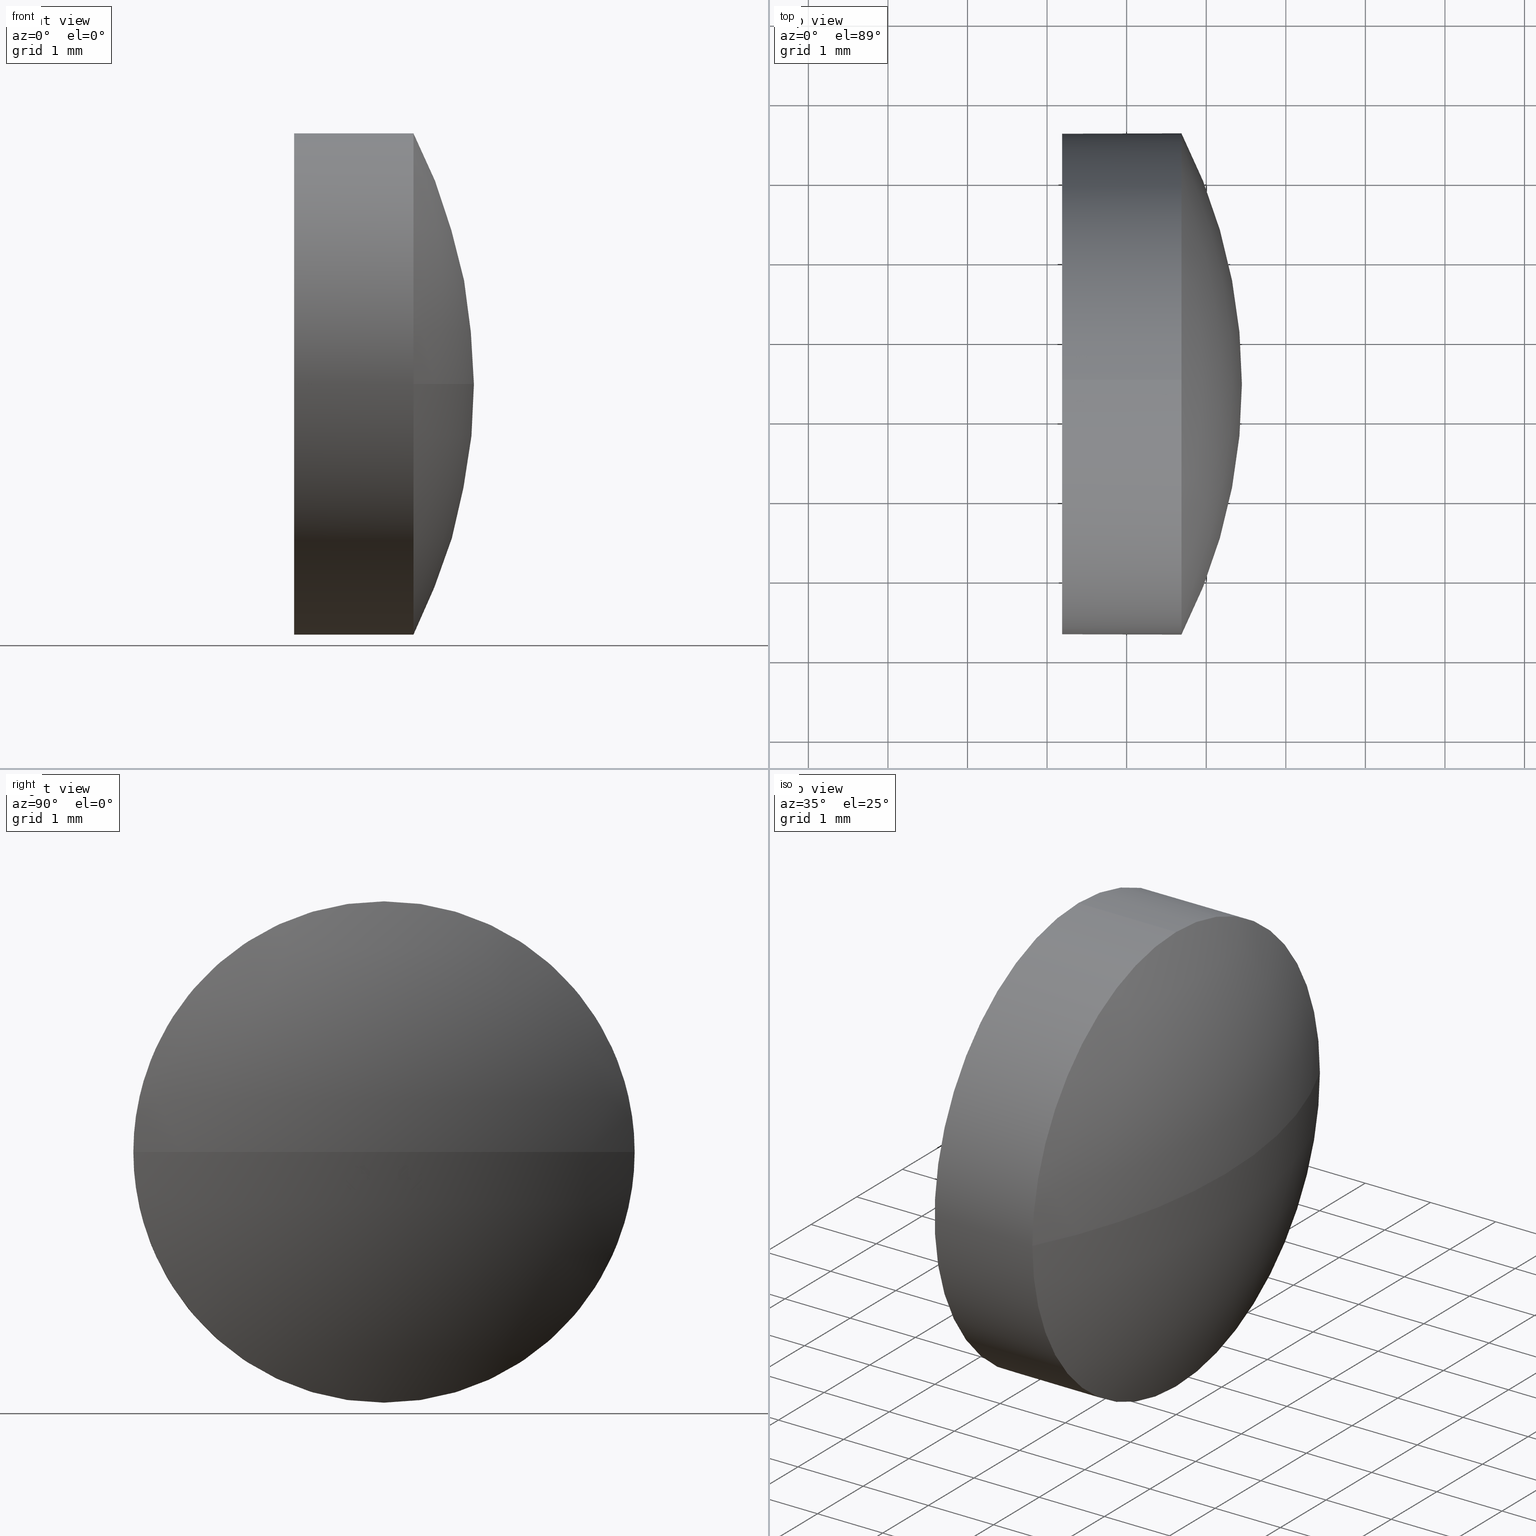
[diagram: canonical four-view strip — front | top / right | iso, engineering-drawing reading convention]
A machine part, canonical four-view strip (front | top / right | iso — engineering-drawing reading convention). The complete STEP part file that produces these views, byte-faithful:
ISO-10303-21;
HEADER;
FILE_DESCRIPTION (( 'STEP AP214' ),
    '1' );
FILE_NAME ('100351.STEP',
    '2019-06-03T03:25:53',
    ( '' ),
    ( '' ),
    'SwSTEP 2.0',
    'SolidWorks 2016',
    '' );
FILE_SCHEMA (( 'AUTOMOTIVE_DESIGN' ));
ENDSEC;

DATA;
#1 = ADVANCED_BREP_SHAPE_REPRESENTATION ( '100351', ( #84, #34 ), #147 ) ;
#2 = ORIENTED_EDGE ( 'NONE', *, *, #122, .F. ) ;
#3 = PRESENTATION_STYLE_ASSIGNMENT (( #126 ) ) ;
#4 = LINE ( 'NONE', #102, #105 ) ;
#5 = ORIENTED_EDGE ( 'NONE', *, *, #86, .F. ) ;
#6 = MECHANICAL_DESIGN_GEOMETRIC_PRESENTATION_REPRESENTATION (  '', ( #73 ), #87 ) ;
#7 = DIRECTION ( 'NONE',  ( 0.0000000000000000000, -1.000000000000000000, 0.0000000000000000000 ) ) ;
#8 = FACE_OUTER_BOUND ( 'NONE', #74, .T. ) ;
#9 = FACE_OUTER_BOUND ( 'NONE', #107, .T. ) ;
#10 = DIRECTION ( 'NONE',  ( 1.000000000000000000, 0.0000000000000000000, 0.0000000000000000000 ) ) ;
#11 = ORIENTED_EDGE ( 'NONE', *, *, #101, .T. ) ;
#12 =( NAMED_UNIT ( * ) SI_UNIT ( $, .STERADIAN. ) SOLID_ANGLE_UNIT ( ) );
#13 = CARTESIAN_POINT ( 'NONE',  ( 402.6884556923478700, 12.44565855584187600, 0.0000000000000000000 ) ) ;
#14 = PRODUCT_DEFINITION_FORMATION_WITH_SPECIFIED_SOURCE ( '�κ�', '', #186, .NOT_KNOWN. ) ;
#15 = DIRECTION ( 'NONE',  ( 0.0000000000000000000, -1.000000000000000000, -1.224646799147353200E-016 ) ) ;
#16 = CARTESIAN_POINT ( 'NONE',  ( 0.0000000000000000000, 0.0000000000000000000, 0.0000000000000000000 ) ) ;
#17 = AXIS2_PLACEMENT_3D ( 'NONE', #38, #50, #151 ) ;
#18 = PRODUCT_DEFINITION_CONTEXT ( 'detailed design', #28, 'design' ) ;
#19 = SHAPE_DEFINITION_REPRESENTATION ( #146, #1 ) ;
#20 = CIRCLE ( 'NONE', #113, 3.149999999999999900 ) ;
#21 = ORIENTED_EDGE ( 'NONE', *, *, #122, .T. ) ;
#22 = DIRECTION ( 'NONE',  ( -1.000000000000000000, -0.0000000000000000000, -0.0000000000000000000 ) ) ;
#23 = CIRCLE ( 'NONE', #125, 3.149999999999999900 ) ;
#24 = CARTESIAN_POINT ( 'NONE',  ( 401.1884556923478700, 12.44565855584187600, 0.0000000000000000000 ) ) ;
#25 = EDGE_CURVE ( 'NONE', #117, #123, #47, .T. ) ;
#26 = CARTESIAN_POINT ( 'NONE',  ( 402.6884556923478700, 15.59565855584187400, 3.857637417314135600E-016 ) ) ;
#27 = APPLICATION_PROTOCOL_DEFINITION ( 'draft international standard', 'automotive_design', 1998, #104 ) ;
#28 = APPLICATION_CONTEXT ( 'automotive_design' ) ;
#29 = VERTEX_POINT ( 'NONE', #26 ) ;
#30 = STYLED_ITEM ( 'NONE', ( #40 ), #84 ) ;
#31 = PLANE ( 'NONE',  #175 ) ;
#32 = DIRECTION ( 'NONE',  ( 0.0000000000000000000, 0.0000000000000000000, 1.000000000000000000 ) ) ;
#33 = EDGE_LOOP ( 'NONE', ( #41, #11, #21, #37, #138 ) ) ;
#34 = AXIS2_PLACEMENT_3D ( 'NONE', #16, #32, #106 ) ;
#35 = ADVANCED_FACE ( 'NONE', ( #8 ), #114, .T. ) ;
#36 = COLOUR_RGB ( '',1.000000000000000000, 1.000000000000000000, 1.000000000000000000 ) ;
#37 = ORIENTED_EDGE ( 'NONE', *, *, #25, .T. ) ;
#38 = CARTESIAN_POINT ( 'NONE',  ( 396.5404951660320300, 12.44565855584189700, 0.0000000000000000000 ) ) ;
#39 = DIRECTION ( 'NONE',  ( -1.000000000000000000, -0.0000000000000000000, -0.0000000000000000000 ) ) ;
#40 = PRESENTATION_STYLE_ASSIGNMENT (( #166 ) ) ;
#41 = ORIENTED_EDGE ( 'NONE', *, *, #90, .F. ) ;
#42 = CARTESIAN_POINT ( 'NONE',  ( 401.1884556923478700, 12.44565855584187600, 3.149999999999999900 ) ) ;
#43 = DIRECTION ( 'NONE',  ( -1.000000000000000000, -0.0000000000000000000, -0.0000000000000000000 ) ) ;
#44 = SURFACE_STYLE_FILL_AREA ( #66 ) ;
#45 = CLOSED_SHELL ( 'NONE', ( #35, #100, #46, #48, #176 ) ) ;
#46 = ADVANCED_FACE ( 'NONE', ( #103 ), #82, .T. ) ;
#47 = LINE ( 'NONE', #121, #93 ) ;
#48 = ADVANCED_FACE ( 'NONE', ( #71 ), #148, .T. ) ;
#49 = ORIENTED_EDGE ( 'NONE', *, *, #145, .F. ) ;
#50 = DIRECTION ( 'NONE',  ( 0.0000000000000000000, 0.0000000000000000000, 1.000000000000000000 ) ) ;
#51 = DIRECTION ( 'NONE',  ( -1.000000000000000000, -0.0000000000000000000, -0.0000000000000000000 ) ) ;
#52 = FILL_AREA_STYLE_COLOUR ( '', #36 ) ;
#53 = DIRECTION ( 'NONE',  ( -1.000000000000000000, -0.0000000000000000000, -0.0000000000000000000 ) ) ;
#54 = VERTEX_POINT ( 'NONE', #118 ) ;
#55 = FILL_AREA_STYLE_COLOUR ( '', #85 ) ;
#56 = DIRECTION ( 'NONE',  ( 0.0000000000000000000, 0.0000000000000000000, 1.000000000000000000 ) ) ;
#57 = DIRECTION ( 'NONE',  ( 0.0000000000000000000, 0.0000000000000000000, 1.000000000000000000 ) ) ;
#58 = AXIS2_PLACEMENT_3D ( 'NONE', #24, #53, #75 ) ;
#59 = CARTESIAN_POINT ( 'NONE',  ( 402.6884556923478700, 12.44565855584187600, 0.0000000000000000000 ) ) ;
#60 = DIRECTION ( 'NONE',  ( -1.000000000000000000, 0.0000000000000000000, 0.0000000000000000000 ) ) ;
#61 = CIRCLE ( 'NONE', #152, 6.907960526315816800 ) ;
#62 = ORIENTED_EDGE ( 'NONE', *, *, #145, .T. ) ;
#63 = CARTESIAN_POINT ( 'NONE',  ( 402.6884556923478700, 12.44565855584187600, 0.0000000000000000000 ) ) ;
#64 = AXIS2_PLACEMENT_3D ( 'NONE', #119, #22, #154 ) ;
#65 = DIRECTION ( 'NONE',  ( -1.000000000000000000, -0.0000000000000000000, -0.0000000000000000000 ) ) ;
#66 = FILL_AREA_STYLE ('',( #55 ) ) ;
#67 = DIRECTION ( 'NONE',  ( 0.0000000000000000000, 0.0000000000000000000, -1.000000000000000000 ) ) ;
#68 = VERTEX_POINT ( 'NONE', #135 ) ;
#69 = APPLICATION_PROTOCOL_DEFINITION ( 'draft international standard', 'automotive_design', 1998, #28 ) ;
#70 =( LENGTH_UNIT ( ) NAMED_UNIT ( * ) SI_UNIT ( .MILLI., .METRE. ) );
#71 = FACE_OUTER_BOUND ( 'NONE', #33, .T. ) ;
#72 = ORIENTED_EDGE ( 'NONE', *, *, #90, .T. ) ;
#73 = STYLED_ITEM ( 'NONE', ( #3 ), #1 ) ;
#74 = EDGE_LOOP ( 'NONE', ( #83, #72, #5, #112, #62 ) ) ;
#75 = DIRECTION ( 'NONE',  ( 0.0000000000000000000, 0.0000000000000000000, 1.000000000000000000 ) ) ;
#76 = DIRECTION ( 'NONE',  ( 0.0000000000000000000, 0.0000000000000000000, 1.000000000000000000 ) ) ;
#77 = CARTESIAN_POINT ( 'NONE',  ( 400.3278176035988700, 12.44565855584187600, 0.0000000000000000000 ) ) ;
#78 = ORIENTED_EDGE ( 'NONE', *, *, #173, .T. ) ;
#79 = CARTESIAN_POINT ( 'NONE',  ( 402.6884556923478700, 12.44565855584187600, 3.149999999999999900 ) ) ;
#80 =( NAMED_UNIT ( * ) PLANE_ANGLE_UNIT ( ) SI_UNIT ( $, .RADIAN. ) );
#81 = DIRECTION ( 'NONE',  ( 0.0000000000000000000, 0.0000000000000000000, -1.000000000000000000 ) ) ;
#82 = SPHERICAL_SURFACE ( 'NONE', #131, 6.907960526315816800 ) ;
#83 = ORIENTED_EDGE ( 'NONE', *, *, #133, .T. ) ;
#84 = MANIFOLD_SOLID_BREP ( '��ת1', #45 ) ;
#85 = COLOUR_RGB ( '',1.000000000000000000, 1.000000000000000000, 1.000000000000000000 ) ;
#86 = EDGE_CURVE ( 'NONE', #123, #167, #155, .T. ) ;
#87 =( GEOMETRIC_REPRESENTATION_CONTEXT ( 3 ) GLOBAL_UNCERTAINTY_ASSIGNED_CONTEXT ( ( #132 ) ) GLOBAL_UNIT_ASSIGNED_CONTEXT ( ( #70, #110, #185 ) ) REPRESENTATION_CONTEXT ( 'NONE', 'WORKASPACE' ) );
#88 = AXIS2_PLACEMENT_3D ( 'NONE', #59, #169, #56 ) ;
#89 = CIRCLE ( 'NONE', #171, 3.149999999999999900 ) ;
#90 = EDGE_CURVE ( 'NONE', #177, #167, #4, .T. ) ;
#91 =( LENGTH_UNIT ( ) NAMED_UNIT ( * ) SI_UNIT ( .MILLI., .METRE. ) );
#92 = SURFACE_SIDE_STYLE ('',( #174 ) ) ;
#93 = VECTOR ( 'NONE', #165, 1000.000000000000000 ) ;
#94 = AXIS2_PLACEMENT_3D ( 'NONE', #160, #67, #60 ) ;
#95 = CARTESIAN_POINT ( 'NONE',  ( 396.5404951660320300, 12.44565855584189700, 0.0000000000000000000 ) ) ;
#96 = PRODUCT_DEFINITION ( 'δ֪', '', #14, #18 ) ;
#97 = ORIENTED_EDGE ( 'NONE', *, *, #116, .F. ) ;
#98 = ORIENTED_EDGE ( 'NONE', *, *, #111, .F. ) ;
#99 = AXIS2_PLACEMENT_3D ( 'NONE', #63, #65, #76 ) ;
#100 = ADVANCED_FACE ( 'NONE', ( #9 ), #115, .T. ) ;
#101 = EDGE_CURVE ( 'NONE', #177, #54, #149, .T. ) ;
#102 = CARTESIAN_POINT ( 'NONE',  ( 400.3278176035988700, 12.44565855584187600, -3.149999999999999900 ) ) ;
#103 = FACE_OUTER_BOUND ( 'NONE', #156, .T. ) ;
#104 = APPLICATION_CONTEXT ( 'automotive_design' ) ;
#105 = VECTOR ( 'NONE', #51, 1000.000000000000000 ) ;
#106 = DIRECTION ( 'NONE',  ( 1.000000000000000000, 0.0000000000000000000, 0.0000000000000000000 ) ) ;
#107 = EDGE_LOOP ( 'NONE', ( #97, #130, #49, #2 ) ) ;
#108 = DIRECTION ( 'NONE',  ( -1.000000000000000000, -0.0000000000000000000, -0.0000000000000000000 ) ) ;
#109 = DIRECTION ( 'NONE',  ( -1.000000000000000000, -0.0000000000000000000, -0.0000000000000000000 ) ) ;
#110 =( NAMED_UNIT ( * ) PLANE_ANGLE_UNIT ( ) SI_UNIT ( $, .RADIAN. ) );
#111 = EDGE_CURVE ( 'NONE', #68, #29, #61, .T. ) ;
#112 = ORIENTED_EDGE ( 'NONE', *, *, #25, .F. ) ;
#113 = AXIS2_PLACEMENT_3D ( 'NONE', #13, #109, #168 ) ;
#114 = CYLINDRICAL_SURFACE ( 'NONE', #64, 3.149999999999999900 ) ;
#115 = SPHERICAL_SURFACE ( 'NONE', #17, 6.907960526315816800 ) ;
#116 = EDGE_CURVE ( 'NONE', #68, #54, #129, .T. ) ;
#117 = VERTEX_POINT ( 'NONE', #79 ) ;
#118 = CARTESIAN_POINT ( 'NONE',  ( 402.6884556923478700, 9.295658555841898300, 0.0000000000000000000 ) ) ;
#119 = CARTESIAN_POINT ( 'NONE',  ( 400.3278176035988700, 12.44565855584187600, 0.0000000000000000000 ) ) ;
#120 = PRESENTATION_LAYER_ASSIGNMENT (  '', '', ( #30 ) ) ;
#121 = CARTESIAN_POINT ( 'NONE',  ( 400.3278176035988700, 12.44565855584187600, 3.149999999999999900 ) ) ;
#122 = EDGE_CURVE ( 'NONE', #54, #117, #20, .T. ) ;
#123 = VERTEX_POINT ( 'NONE', #42 ) ;
#124 =( LENGTH_UNIT ( ) NAMED_UNIT ( * ) SI_UNIT ( .MILLI., .METRE. ) );
#125 = AXIS2_PLACEMENT_3D ( 'NONE', #157, #108, #57 ) ;
#126 = SURFACE_STYLE_USAGE ( .BOTH. , #128 ) ;
#127 = CARTESIAN_POINT ( 'NONE',  ( 401.1884556923478700, 12.44565855584187600, -3.149999999999999900 ) ) ;
#128 = SURFACE_SIDE_STYLE ('',( #44 ) ) ;
#129 = CIRCLE ( 'NONE', #94, 6.907960526315815000 ) ;
#130 = ORIENTED_EDGE ( 'NONE', *, *, #111, .T. ) ;
#131 = AXIS2_PLACEMENT_3D ( 'NONE', #179, #137, #7 ) ;
#132 = UNCERTAINTY_MEASURE_WITH_UNIT (LENGTH_MEASURE( 1.000000000000000100E-005 ), #70, 'distance_accuracy_value', 'NONE');
#133 = EDGE_CURVE ( 'NONE', #29, #177, #136, .T. ) ;
#134 = DIRECTION ( 'NONE',  ( 0.0000000000000000000, 0.0000000000000000000, 1.000000000000000000 ) ) ;
#135 = CARTESIAN_POINT ( 'NONE',  ( 403.4484556923478100, 12.44565855584189700, 0.0000000000000000000 ) ) ;
#136 = CIRCLE ( 'NONE', #88, 3.149999999999999900 ) ;
#137 = DIRECTION ( 'NONE',  ( 0.0000000000000000000, 0.0000000000000000000, 1.000000000000000000 ) ) ;
#138 = ORIENTED_EDGE ( 'NONE', *, *, #173, .F. ) ;
#139 = PRODUCT_RELATED_PRODUCT_CATEGORY ( 'part', '', ( #186 ) ) ;
#140 = ORIENTED_EDGE ( 'NONE', *, *, #133, .F. ) ;
#141 = DIRECTION ( 'NONE',  ( 0.0000000000000000000, -1.224646799147353200E-016, 1.000000000000000000 ) ) ;
#142 = DIRECTION ( 'NONE',  ( 0.0000000000000000000, 0.0000000000000000000, 1.000000000000000000 ) ) ;
#143 = MECHANICAL_DESIGN_GEOMETRIC_PRESENTATION_REPRESENTATION (  '', ( #30 ), #180 ) ;
#144 = CARTESIAN_POINT ( 'NONE',  ( 402.6884556923478700, 12.44565855584187600, -3.149999999999999900 ) ) ;
#145 = EDGE_CURVE ( 'NONE', #117, #29, #23, .T. ) ;
#146 = PRODUCT_DEFINITION_SHAPE ( 'NONE', 'NONE',  #96 ) ;
#147 =( GEOMETRIC_REPRESENTATION_CONTEXT ( 3 ) GLOBAL_UNCERTAINTY_ASSIGNED_CONTEXT ( ( #161 ) ) GLOBAL_UNIT_ASSIGNED_CONTEXT ( ( #124, #80, #12 ) ) REPRESENTATION_CONTEXT ( 'NONE', 'WORKASPACE' ) );
#148 = CYLINDRICAL_SURFACE ( 'NONE', #158, 3.149999999999999900 ) ;
#149 = CIRCLE ( 'NONE', #99, 3.149999999999999900 ) ;
#150 = ORIENTED_EDGE ( 'NONE', *, *, #101, .F. ) ;
#151 = DIRECTION ( 'NONE',  ( 0.0000000000000000000, -1.000000000000000000, 0.0000000000000000000 ) ) ;
#152 = AXIS2_PLACEMENT_3D ( 'NONE', #95, #141, #15 ) ;
#153 =( NAMED_UNIT ( * ) SI_UNIT ( $, .STERADIAN. ) SOLID_ANGLE_UNIT ( ) );
#154 = DIRECTION ( 'NONE',  ( 0.0000000000000000000, 0.0000000000000000000, 1.000000000000000000 ) ) ;
#155 = CIRCLE ( 'NONE', #58, 3.149999999999999900 ) ;
#156 = EDGE_LOOP ( 'NONE', ( #98, #183, #150, #140 ) ) ;
#157 = CARTESIAN_POINT ( 'NONE',  ( 402.6884556923478700, 12.44565855584187600, 0.0000000000000000000 ) ) ;
#158 = AXIS2_PLACEMENT_3D ( 'NONE', #77, #39, #134 ) ;
#159 = PRODUCT_CONTEXT ( 'NONE', #104, 'mechanical' ) ;
#160 = CARTESIAN_POINT ( 'NONE',  ( 396.5404951660320300, 12.44565855584189700, 0.0000000000000000000 ) ) ;
#161 = UNCERTAINTY_MEASURE_WITH_UNIT (LENGTH_MEASURE( 1.000000000000000100E-005 ), #124, 'distance_accuracy_value', 'NONE');
#162 = EDGE_LOOP ( 'NONE', ( #163, #78 ) ) ;
#163 = ORIENTED_EDGE ( 'NONE', *, *, #86, .T. ) ;
#164 = UNCERTAINTY_MEASURE_WITH_UNIT (LENGTH_MEASURE( 1.000000000000000100E-005 ), #91, 'distance_accuracy_value', 'NONE');
#165 = DIRECTION ( 'NONE',  ( -1.000000000000000000, -0.0000000000000000000, -0.0000000000000000000 ) ) ;
#166 = SURFACE_STYLE_USAGE ( .BOTH. , #92 ) ;
#167 = VERTEX_POINT ( 'NONE', #127 ) ;
#168 = DIRECTION ( 'NONE',  ( 0.0000000000000000000, 0.0000000000000000000, 1.000000000000000000 ) ) ;
#169 = DIRECTION ( 'NONE',  ( -1.000000000000000000, -0.0000000000000000000, -0.0000000000000000000 ) ) ;
#170 = CARTESIAN_POINT ( 'NONE',  ( 401.1884556923478700, 12.44565855584187600, 0.0000000000000000000 ) ) ;
#171 = AXIS2_PLACEMENT_3D ( 'NONE', #170, #43, #142 ) ;
#172 = FACE_OUTER_BOUND ( 'NONE', #162, .T. ) ;
#173 = EDGE_CURVE ( 'NONE', #167, #123, #89, .T. ) ;
#174 = SURFACE_STYLE_FILL_AREA ( #181 ) ;
#175 = AXIS2_PLACEMENT_3D ( 'NONE', #182, #10, #81 ) ;
#176 = ADVANCED_FACE ( 'NONE', ( #172 ), #31, .F. ) ;
#177 = VERTEX_POINT ( 'NONE', #144 ) ;
#178 =( NAMED_UNIT ( * ) PLANE_ANGLE_UNIT ( ) SI_UNIT ( $, .RADIAN. ) );
#179 = CARTESIAN_POINT ( 'NONE',  ( 396.5404951660320300, 12.44565855584189700, 0.0000000000000000000 ) ) ;
#180 =( GEOMETRIC_REPRESENTATION_CONTEXT ( 3 ) GLOBAL_UNCERTAINTY_ASSIGNED_CONTEXT ( ( #164 ) ) GLOBAL_UNIT_ASSIGNED_CONTEXT ( ( #91, #178, #153 ) ) REPRESENTATION_CONTEXT ( 'NONE', 'WORKASPACE' ) );
#181 = FILL_AREA_STYLE ('',( #52 ) ) ;
#182 = CARTESIAN_POINT ( 'NONE',  ( 401.1884556923478700, 12.44565855584187600, 0.0000000000000000000 ) ) ;
#183 = ORIENTED_EDGE ( 'NONE', *, *, #116, .T. ) ;
#184 = PRESENTATION_LAYER_ASSIGNMENT (  '', '', ( #73 ) ) ;
#185 =( NAMED_UNIT ( * ) SI_UNIT ( $, .STERADIAN. ) SOLID_ANGLE_UNIT ( ) );
#186 = PRODUCT ( '100351', '100351', '', ( #159 ) ) ;
ENDSEC;
END-ISO-10303-21;
